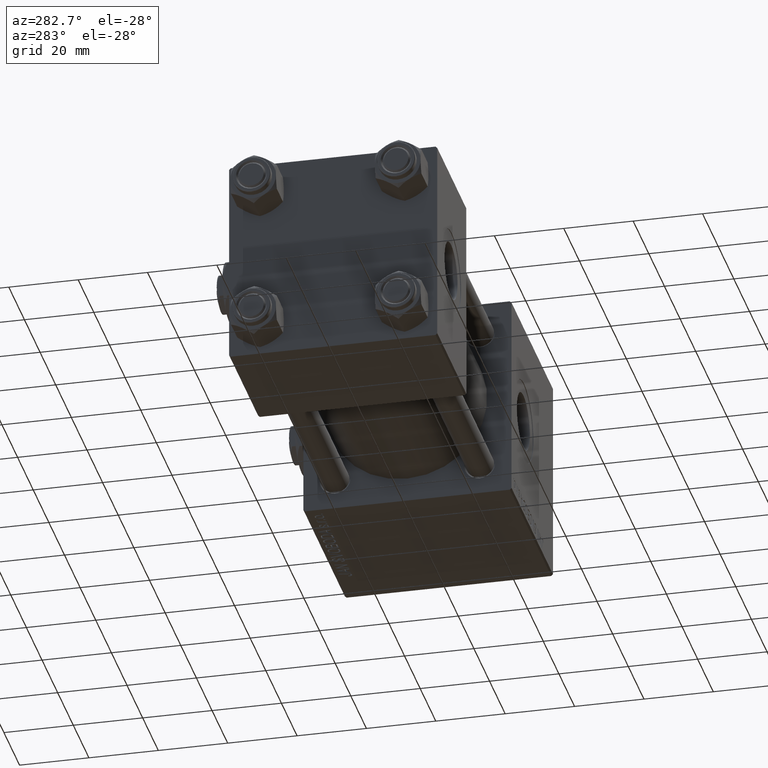
[diagram: clean part render]
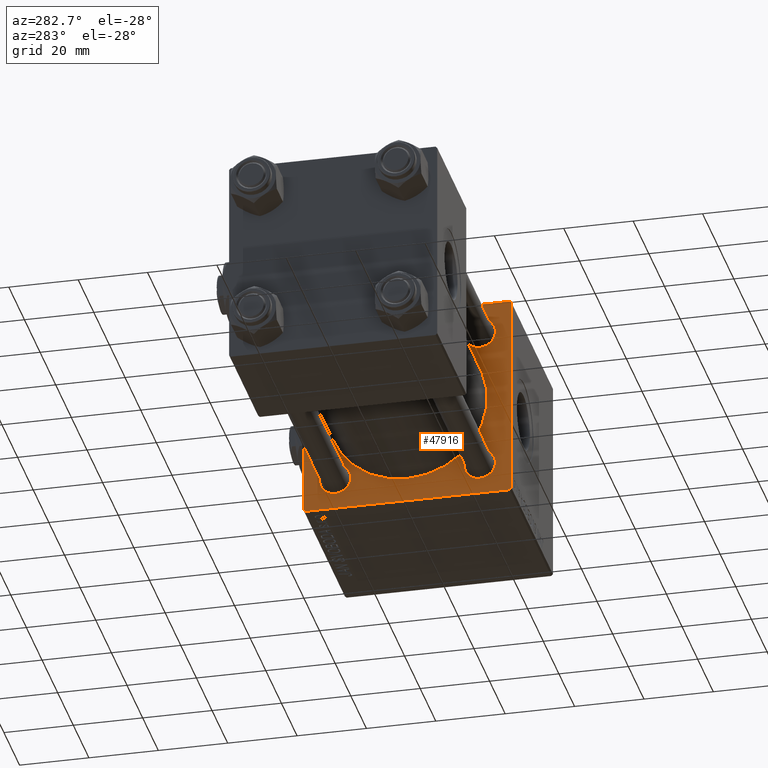
[diagram: same view with one face highlighted and labeled with its STEP entity id]
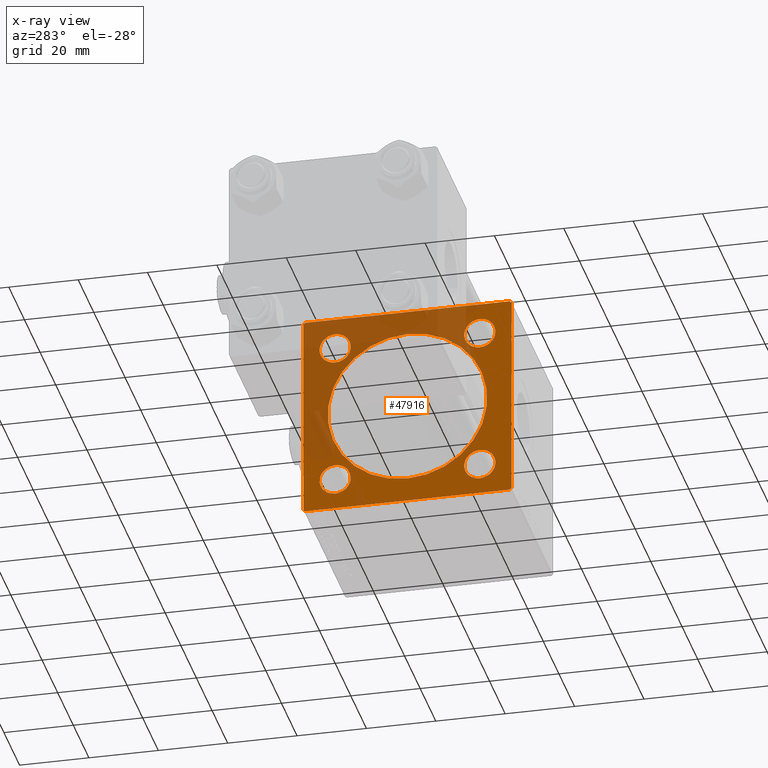
[diagram: x-ray of the same camera — body ghosted, the highlighted face saturated]
A machine part, auxiliary view. The second image highlights one B-rep face of the part: STEP entity #47916.
The next image is the same camera in x-ray: the body ghosted, the highlighted face saturated — about 41% of this face is hidden behind the body in this view.
In plain terms, the highlighted planar face has unit normal (-1, 0, 0).
Its self-contained STEP definition (entity closure, byte-faithful):
#178 = CIRCLE ( 'NONE', #6943, 4.500000000000007105 ) ;
#652 = CIRCLE ( 'NONE', #10882, 23.00000000000000000 ) ;
#679 = DIRECTION ( 'NONE',  ( 1.000000000000000000, -0.000000000000000000, 0.000000000000000000 ) ) ;
#722 = DIRECTION ( 'NONE',  ( 1.000000000000000000, 0.000000000000000000, 0.000000000000000000 ) ) ;
#902 = EDGE_CURVE ( 'NONE', #50315, #15375, #34466, .T. ) ;
#1754 = VECTOR ( 'NONE', #23834, 1000.000000000000114 ) ;
#2215 = VECTOR ( 'NONE', #46531, 1000.000000000000114 ) ;
#2897 = VERTEX_POINT ( 'NONE', #26552 ) ;
#2901 = CARTESIAN_POINT ( 'NONE',  ( 95.00000000000000000, 29.74999999999999645, 29.74999999999999645 ) ) ;
#3066 = VECTOR ( 'NONE', #37955, 1000.000000000000114 ) ;
#3143 = DIRECTION ( 'NONE',  ( 0.000000000000000000, 0.000000000000000000, 1.000000000000000000 ) ) ;
#3826 = EDGE_CURVE ( 'NONE', #32565, #6360, #35966, .T. ) ;
#3833 = CARTESIAN_POINT ( 'NONE',  ( 95.00000000000000000, 0.000000000000000000, 0.000000000000000000 ) ) ;
#4011 = CARTESIAN_POINT ( 'NONE',  ( 95.00000000000000000, 30.00000000000000000, 29.50000000000000000 ) ) ;
#4314 = EDGE_CURVE ( 'NONE', #32252, #11678, #27485, .T. ) ;
#4628 = PLANE ( 'NONE',  #44543 ) ;
#4711 = EDGE_LOOP ( 'NONE', ( #41803, #30759 ) ) ;
#4904 = EDGE_CURVE ( 'NONE', #38029, #32836, #26587, .T. ) ;
#5419 = CARTESIAN_POINT ( 'NONE',  ( 95.00000000000000000, -20.84999999999999076, -20.85000000000000497 ) ) ;
#5578 = ORIENTED_EDGE ( 'NONE', *, *, #20322, .T. ) ;
#5623 = VECTOR ( 'NONE', #42975, 1000.000000000000000 ) ;
#5642 = DIRECTION ( 'NONE',  ( 1.000000000000000000, -0.000000000000000000, 0.000000000000000000 ) ) ;
#6160 = DIRECTION ( 'NONE',  ( 0.000000000000000000, 0.000000000000000000, 1.000000000000000000 ) ) ;
#6360 = VERTEX_POINT ( 'NONE', #12760 ) ;
#6408 = EDGE_LOOP ( 'NONE', ( #27813, #36635 ) ) ;
#6943 = AXIS2_PLACEMENT_3D ( 'NONE', #26007, #5642, #6160 ) ;
#7668 = AXIS2_PLACEMENT_3D ( 'NONE', #26881, #51174, #42998 ) ;
#7699 = CARTESIAN_POINT ( 'NONE',  ( 95.00000000000000000, 29.74999999999999645, -29.74999999999999645 ) ) ;
#7740 = CIRCLE ( 'NONE', #18718, 23.00000000000000000 ) ;
#8007 = EDGE_CURVE ( 'NONE', #11678, #14175, #16158, .T. ) ;
#8075 = FACE_BOUND ( 'NONE', #8432, .T. ) ;
#8211 = VECTOR ( 'NONE', #50973, 1000.000000000000114 ) ;
#8432 = EDGE_LOOP ( 'NONE', ( #25490, #39985 ) ) ;
#8823 = DIRECTION ( 'NONE',  ( 0.000000000000000000, 0.000000000000000000, 1.000000000000000000 ) ) ;
#9939 = LINE ( 'NONE', #33748, #3066 ) ;
#10724 = CIRCLE ( 'NONE', #11581, 4.500000000000007105 ) ;
#10882 = AXIS2_PLACEMENT_3D ( 'NONE', #21091, #722, #28762 ) ;
#10941 = CIRCLE ( 'NONE', #31231, 4.500000000000007105 ) ;
#11581 = AXIS2_PLACEMENT_3D ( 'NONE', #36298, #20971, #40253 ) ;
#11678 = VERTEX_POINT ( 'NONE', #4011 ) ;
#11910 = DIRECTION ( 'NONE',  ( 0.000000000000000000, -1.000000000000000000, -1.156482317317871478E-16 ) ) ;
#12033 = DIRECTION ( 'NONE',  ( -0.000000000000000000, 0.000000000000000000, 1.000000000000000000 ) ) ;
#12760 = CARTESIAN_POINT ( 'NONE',  ( 95.00000000000000000, 20.84999999999999787, -16.34999999999999432 ) ) ;
#13168 = DIRECTION ( 'NONE',  ( 1.000000000000000000, -0.000000000000000000, 0.000000000000000000 ) ) ;
#14175 = VERTEX_POINT ( 'NONE', #41828 ) ;
#14251 = LINE ( 'NONE', #42526, #8211 ) ;
#15375 = VERTEX_POINT ( 'NONE', #36320 ) ;
#15399 = EDGE_LOOP ( 'NONE', ( #45166, #30442, #22360, #40180, #30496, #50184, #34628, #16632 ) ) ;
#15600 = CARTESIAN_POINT ( 'NONE',  ( 95.00000000000000000, 30.00000000000000000, 30.00000000000000000 ) ) ;
#15613 = VECTOR ( 'NONE', #50839, 1000.000000000000000 ) ;
#16102 = CIRCLE ( 'NONE', #7668, 4.500000000000007105 ) ;
#16158 = LINE ( 'NONE', #44715, #47098 ) ;
#16480 = DIRECTION ( 'NONE',  ( 1.000000000000000000, -0.000000000000000000, 0.000000000000000000 ) ) ;
#16632 = ORIENTED_EDGE ( 'NONE', *, *, #24688, .T. ) ;
#16789 = FACE_BOUND ( 'NONE', #22109, .T. ) ;
#17654 = CARTESIAN_POINT ( 'NONE',  ( 95.00000000000000000, -20.84999999999999076, 20.85000000000000497 ) ) ;
#18718 = AXIS2_PLACEMENT_3D ( 'NONE', #38600, #50762, #34376 ) ;
#19449 = CARTESIAN_POINT ( 'NONE',  ( 95.00000000000000000, 20.84999999999999787, -25.35000000000000853 ) ) ;
#20112 = LINE ( 'NONE', #15600, #40307 ) ;
#20322 = EDGE_CURVE ( 'NONE', #32399, #27489, #21041, .T. ) ;
#20511 = FACE_BOUND ( 'NONE', #4711, .T. ) ;
#20971 = DIRECTION ( 'NONE',  ( 1.000000000000000000, -0.000000000000000000, 0.000000000000000000 ) ) ;
#21041 = CIRCLE ( 'NONE', #51385, 4.500000000000007105 ) ;
#21091 = CARTESIAN_POINT ( 'NONE',  ( 95.00000000000000000, -2.602085213965210642E-15, 0.000000000000000000 ) ) ;
#21541 = CARTESIAN_POINT ( 'NONE',  ( 95.00000000000000000, 20.84999999999999787, 25.35000000000000853 ) ) ;
#21797 = CARTESIAN_POINT ( 'NONE',  ( 95.00000000000000000, -30.00000000000000000, 29.99999999999999289 ) ) ;
#22109 = EDGE_LOOP ( 'NONE', ( #23619, #5578 ) ) ;
#22360 = ORIENTED_EDGE ( 'NONE', *, *, #902, .F. ) ;
#23515 = CARTESIAN_POINT ( 'NONE',  ( 95.00000000000000000, 20.84999999999999787, -20.85000000000000142 ) ) ;
#23571 = LINE ( 'NONE', #7699, #1754 ) ;
#23619 = ORIENTED_EDGE ( 'NONE', *, *, #28538, .T. ) ;
#23834 = DIRECTION ( 'NONE',  ( -0.000000000000000000, -0.7071067811865474617, -0.7071067811865474617 ) ) ;
#24057 = VERTEX_POINT ( 'NONE', #26258 ) ;
#24380 = DIRECTION ( 'NONE',  ( 0.000000000000000000, 0.000000000000000000, -1.000000000000000000 ) ) ;
#24506 = CARTESIAN_POINT ( 'NONE',  ( 95.00000000000000000, -20.84999999999999076, -16.34999999999999787 ) ) ;
#24688 = EDGE_CURVE ( 'NONE', #14175, #38029, #23571, .T. ) ;
#24749 = DIRECTION ( 'NONE',  ( 0.000000000000000000, 0.000000000000000000, 1.000000000000000000 ) ) ;
#25042 = CARTESIAN_POINT ( 'NONE',  ( 95.00000000000000000, 20.84999999999999787, 16.34999999999999432 ) ) ;
#25349 = DIRECTION ( 'NONE',  ( 0.000000000000000000, 0.000000000000000000, 1.000000000000000000 ) ) ;
#25490 = ORIENTED_EDGE ( 'NONE', *, *, #47627, .T. ) ;
#25598 = VERTEX_POINT ( 'NONE', #51576 ) ;
#25912 = EDGE_CURVE ( 'NONE', #6360, #32565, #10941, .T. ) ;
#26007 = CARTESIAN_POINT ( 'NONE',  ( 95.00000000000000000, -20.84999999999999076, -20.85000000000000497 ) ) ;
#26258 = CARTESIAN_POINT ( 'NONE',  ( 95.00000000000000000, -20.84999999999999076, 16.34999999999999787 ) ) ;
#26484 = CIRCLE ( 'NONE', #34105, 4.500000000000007105 ) ;
#26552 = CARTESIAN_POINT ( 'NONE',  ( 95.00000000000000000, -2.602085213965210642E-15, 23.00000000000000000 ) ) ;
#26587 = LINE ( 'NONE', #51417, #5623 ) ;
#26724 = VERTEX_POINT ( 'NONE', #38654 ) ;
#26881 = CARTESIAN_POINT ( 'NONE',  ( 95.00000000000000000, 20.84999999999999787, 20.85000000000000142 ) ) ;
#26920 = EDGE_CURVE ( 'NONE', #26724, #24057, #36303, .T. ) ;
#27485 = LINE ( 'NONE', #2901, #2215 ) ;
#27489 = VERTEX_POINT ( 'NONE', #21541 ) ;
#27813 = ORIENTED_EDGE ( 'NONE', *, *, #25912, .T. ) ;
#28538 = EDGE_CURVE ( 'NONE', #27489, #32399, #16102, .T. ) ;
#28762 = DIRECTION ( 'NONE',  ( 0.000000000000000000, 0.000000000000000000, -1.000000000000000000 ) ) ;
#30256 = ORIENTED_EDGE ( 'NONE', *, *, #43750, .T. ) ;
#30442 = ORIENTED_EDGE ( 'NONE', *, *, #43290, .T. ) ;
#30496 = ORIENTED_EDGE ( 'NONE', *, *, #48112, .F. ) ;
#30573 = VERTEX_POINT ( 'NONE', #24506 ) ;
#30759 = ORIENTED_EDGE ( 'NONE', *, *, #36534, .T. ) ;
#30984 = EDGE_CURVE ( 'NONE', #38655, #2897, #7740, .T. ) ;
#31231 = AXIS2_PLACEMENT_3D ( 'NONE', #23515, #39354, #3143 ) ;
#32008 = EDGE_CURVE ( 'NONE', #30573, #39787, #178, .T. ) ;
#32199 = CARTESIAN_POINT ( 'NONE',  ( 95.00000000000000000, 29.50000000000000000, 30.00000000000000000 ) ) ;
#32252 = VERTEX_POINT ( 'NONE', #32199 ) ;
#32399 = VERTEX_POINT ( 'NONE', #25042 ) ;
#32506 = DIRECTION ( 'NONE',  ( 0.000000000000000000, 0.000000000000000000, 1.000000000000000000 ) ) ;
#32565 = VERTEX_POINT ( 'NONE', #19449 ) ;
#32836 = VERTEX_POINT ( 'NONE', #37965 ) ;
#32928 = FACE_BOUND ( 'NONE', #6408, .T. ) ;
#33186 = FACE_BOUND ( 'NONE', #47990, .T. ) ;
#33748 = CARTESIAN_POINT ( 'NONE',  ( 95.00000000000000000, -29.74999999999999645, 29.74999999999999645 ) ) ;
#34105 = AXIS2_PLACEMENT_3D ( 'NONE', #5419, #679, #24749 ) ;
#34376 = DIRECTION ( 'NONE',  ( 0.000000000000000000, 0.000000000000000000, -1.000000000000000000 ) ) ;
#34466 = LINE ( 'NONE', #21797, #15613 ) ;
#34628 = ORIENTED_EDGE ( 'NONE', *, *, #8007, .T. ) ;
#35229 = ORIENTED_EDGE ( 'NONE', *, *, #26920, .T. ) ;
#35966 = CIRCLE ( 'NONE', #50291, 4.500000000000007105 ) ;
#36298 = CARTESIAN_POINT ( 'NONE',  ( 95.00000000000000000, -20.84999999999999076, 20.85000000000000497 ) ) ;
#36303 = CIRCLE ( 'NONE', #48150, 4.500000000000007105 ) ;
#36320 = CARTESIAN_POINT ( 'NONE',  ( 95.00000000000000000, -30.00000000000000000, -29.49999999999998579 ) ) ;
#36534 = EDGE_CURVE ( 'NONE', #39787, #30573, #26484, .T. ) ;
#36635 = ORIENTED_EDGE ( 'NONE', *, *, #3826, .T. ) ;
#36722 = DIRECTION ( 'NONE',  ( 1.000000000000000000, -0.000000000000000000, 0.000000000000000000 ) ) ;
#37955 = DIRECTION ( 'NONE',  ( -0.000000000000000000, 0.7071067811865474617, 0.7071067811865474617 ) ) ;
#37965 = CARTESIAN_POINT ( 'NONE',  ( 95.00000000000000000, -29.50000000000000000, -30.00000000000000000 ) ) ;
#38029 = VERTEX_POINT ( 'NONE', #38663 ) ;
#38600 = CARTESIAN_POINT ( 'NONE',  ( 95.00000000000000000, -2.602085213965210642E-15, 0.000000000000000000 ) ) ;
#38654 = CARTESIAN_POINT ( 'NONE',  ( 95.00000000000000000, -20.84999999999999076, 25.35000000000001208 ) ) ;
#38655 = VERTEX_POINT ( 'NONE', #44919 ) ;
#38663 = CARTESIAN_POINT ( 'NONE',  ( 95.00000000000000000, 29.50000000000000000, -29.99999999999999289 ) ) ;
#39354 = DIRECTION ( 'NONE',  ( 1.000000000000000000, -0.000000000000000000, 0.000000000000000000 ) ) ;
#39787 = VERTEX_POINT ( 'NONE', #42705 ) ;
#39985 = ORIENTED_EDGE ( 'NONE', *, *, #30984, .T. ) ;
#40180 = ORIENTED_EDGE ( 'NONE', *, *, #41244, .T. ) ;
#40253 = DIRECTION ( 'NONE',  ( 0.000000000000000000, 0.000000000000000000, 1.000000000000000000 ) ) ;
#40307 = VECTOR ( 'NONE', #11910, 1000.000000000000000 ) ;
#40548 = CARTESIAN_POINT ( 'NONE',  ( 95.00000000000000000, 20.84999999999999787, -20.85000000000000142 ) ) ;
#41244 = EDGE_CURVE ( 'NONE', #50315, #25598, #9939, .T. ) ;
#41728 = CARTESIAN_POINT ( 'NONE',  ( 95.00000000000000000, 20.84999999999999787, 20.85000000000000142 ) ) ;
#41803 = ORIENTED_EDGE ( 'NONE', *, *, #32008, .T. ) ;
#41828 = CARTESIAN_POINT ( 'NONE',  ( 95.00000000000000000, 30.00000000000000000, -29.49999999999997868 ) ) ;
#42526 = CARTESIAN_POINT ( 'NONE',  ( 95.00000000000000000, -29.74999999999999645, -29.74999999999999645 ) ) ;
#42705 = CARTESIAN_POINT ( 'NONE',  ( 95.00000000000000000, -20.84999999999999076, -25.35000000000001208 ) ) ;
#42975 = DIRECTION ( 'NONE',  ( 0.000000000000000000, -1.000000000000000000, -1.156482317317871478E-16 ) ) ;
#42998 = DIRECTION ( 'NONE',  ( 0.000000000000000000, 0.000000000000000000, 1.000000000000000000 ) ) ;
#43290 = EDGE_CURVE ( 'NONE', #32836, #15375, #14251, .T. ) ;
#43750 = EDGE_CURVE ( 'NONE', #24057, #26724, #10724, .T. ) ;
#44543 = AXIS2_PLACEMENT_3D ( 'NONE', #3833, #48261, #12033 ) ;
#44715 = CARTESIAN_POINT ( 'NONE',  ( 95.00000000000000000, 30.00000000000000000, 30.00000000000000000 ) ) ;
#44919 = CARTESIAN_POINT ( 'NONE',  ( 95.00000000000000000, 2.146024240737012665E-16, -23.00000000000000000 ) ) ;
#45166 = ORIENTED_EDGE ( 'NONE', *, *, #4904, .T. ) ;
#46531 = DIRECTION ( 'NONE',  ( 0.000000000000000000, 0.7071067811865474617, -0.7071067811865474617 ) ) ;
#47098 = VECTOR ( 'NONE', #24380, 1000.000000000000000 ) ;
#47627 = EDGE_CURVE ( 'NONE', #2897, #38655, #652, .T. ) ;
#47916 = ADVANCED_FACE ( 'NONE', ( #33186, #16789, #32928, #20511, #8075, #49041 ), #4628, .T. ) ;
#47990 = EDGE_LOOP ( 'NONE', ( #35229, #30256 ) ) ;
#48112 = EDGE_CURVE ( 'NONE', #32252, #25598, #20112, .T. ) ;
#48150 = AXIS2_PLACEMENT_3D ( 'NONE', #17654, #13168, #25349 ) ;
#48261 = DIRECTION ( 'NONE',  ( -1.000000000000000000, 0.000000000000000000, -0.000000000000000000 ) ) ;
#48360 = CARTESIAN_POINT ( 'NONE',  ( 95.00000000000000000, -30.00000000000000000, 29.49999999999999289 ) ) ;
#49041 = FACE_OUTER_BOUND ( 'NONE', #15399, .T. ) ;
#50184 = ORIENTED_EDGE ( 'NONE', *, *, #4314, .T. ) ;
#50291 = AXIS2_PLACEMENT_3D ( 'NONE', #40548, #16480, #8823 ) ;
#50315 = VERTEX_POINT ( 'NONE', #48360 ) ;
#50762 = DIRECTION ( 'NONE',  ( 1.000000000000000000, 0.000000000000000000, 0.000000000000000000 ) ) ;
#50839 = DIRECTION ( 'NONE',  ( 0.000000000000000000, 0.000000000000000000, -1.000000000000000000 ) ) ;
#50973 = DIRECTION ( 'NONE',  ( 0.000000000000000000, -0.7071067811865474617, 0.7071067811865474617 ) ) ;
#51174 = DIRECTION ( 'NONE',  ( 1.000000000000000000, -0.000000000000000000, 0.000000000000000000 ) ) ;
#51385 = AXIS2_PLACEMENT_3D ( 'NONE', #41728, #36722, #32506 ) ;
#51417 = CARTESIAN_POINT ( 'NONE',  ( 95.00000000000000000, 30.00000000000000000, -29.99999999999999289 ) ) ;
#51576 = CARTESIAN_POINT ( 'NONE',  ( 95.00000000000000000, -29.50000000000000000, 29.99999999999999289 ) ) ;